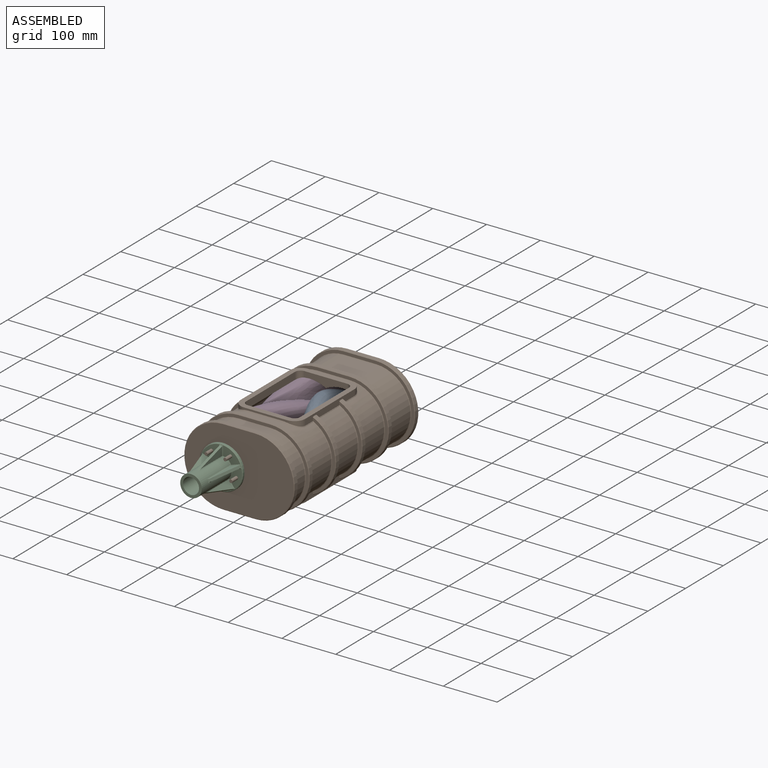
[diagram: assembled view]
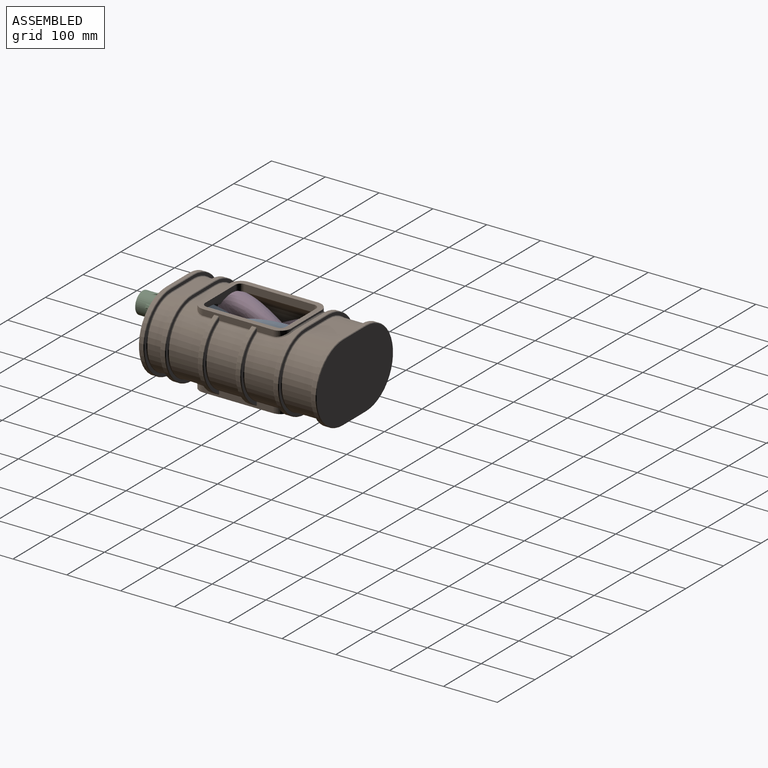
[diagram: assembled view, second angle]
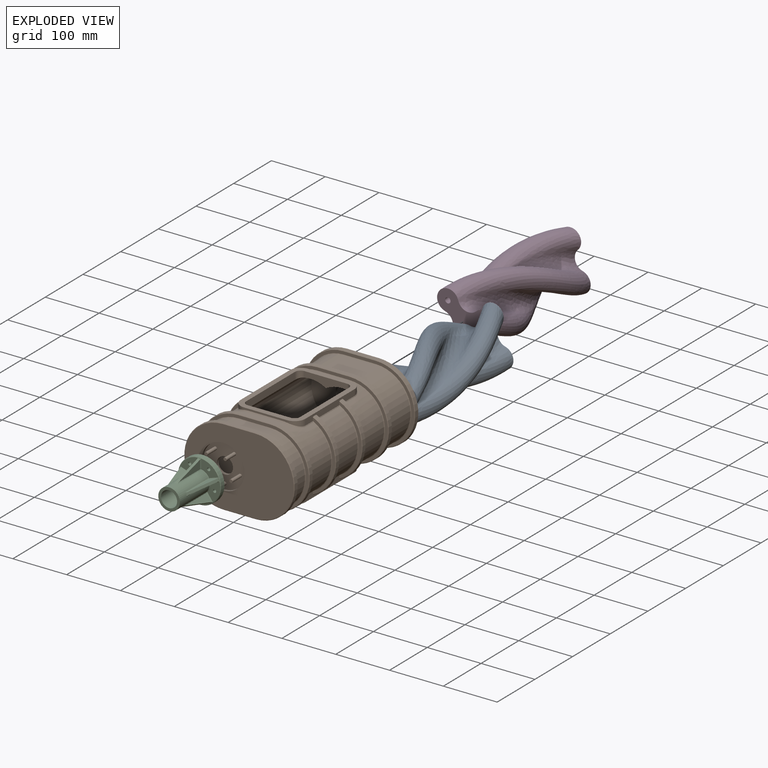
[diagram: exploded view]
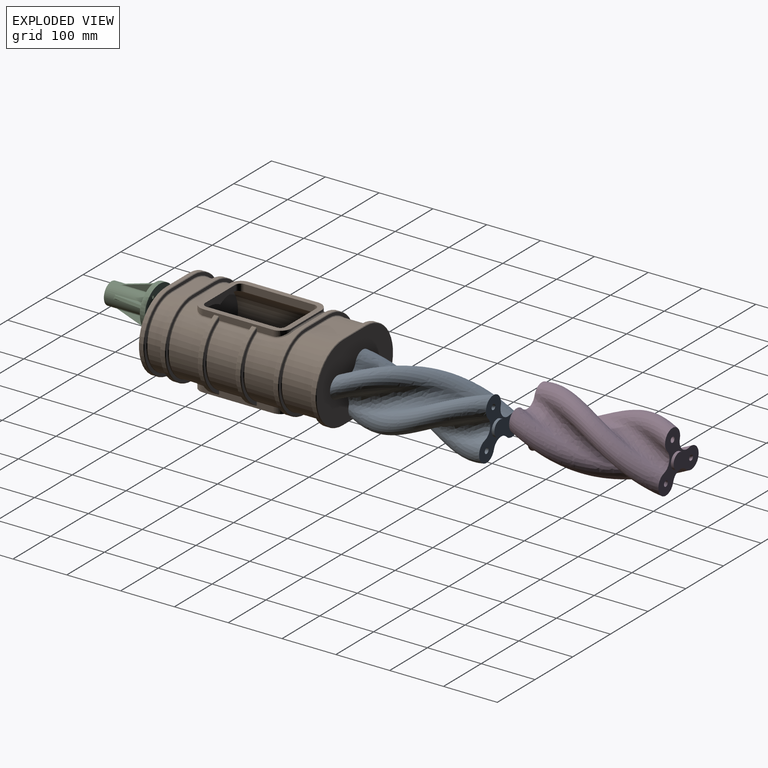
[diagram: exploded view, second angle]
ASSEMBLY  parts=4 mates=3
PART A: 13 faces, bbox 125.6x275x125.7 mm
  f0: cylinder r=15mm len=30mm, axis (0,1,0), area 471.2mm2, adj f1,f5
  f1: plane 30x30mm, normal (0,1,0), area 706.9mm2, adj f0
  f2: bspline ~270x90.34mm, area 8922mm2, adj f5,f6
  f3: bspline ~270x102.4mm, area 8921.8mm2, adj f5,f6
  f4: bspline ~270x95.44mm, area 8921.8mm2, adj f5,f6
  f5: plane 109.28x100mm, normal (0,1,0), area 4471.1mm2, adj f0,f2,f3,f4,f7,f8,f9,f10
  f6: plane 109.28x100mm, normal (0,-1,0), area 5177.9mm2, adj f2,f3,f4,f7,f8,f9,f10,f11
  f7: bspline ~270x69.48mm, area 11659.8mm2, adj f5,f6,f8,f12
  f8: bspline ~270x123.46mm, area 24033.5mm2, adj f5,f6,f7,f9
  f9: bspline ~270x69.67mm, area 11659.8mm2, adj f5,f6,f8,f10
  f10: bspline ~270x123.46mm, area 24033.5mm2, adj f5,f6,f9,f11
  f11: bspline ~270x69.48mm, area 11659.8mm2, adj f5,f6,f10,f12
  f12: bspline ~270x125.5mm, area 24033.5mm2, adj f5,f6,f7,f11
PART B: 223 faces, bbox 205x350x145 mm
  f0: plane 130x13.43mm, normal (-1,0,0), area 1746.1mm2, adj f16,f161,f180,f181
  f1: plane 130x13.43mm, normal (1,0,0), area 1746.1mm2, adj f15,f161,f179,f182
  f2: plane 80x18.04mm, normal (0,-1,0), area 961.8mm2, adj f15,f16,f166,f175,f176
  f3: plane 80x18.04mm, normal (0,1,0), area 961.8mm2, adj f15,f16,f166,f177,f178
  f4: cylinder r=65mm len=130mm, axis (0,-1,0), area 9444.1mm2, adj f17,f34,f36,f119,f198,f199,f200,f212
  f5: plane 60x7.35mm, normal (0,0,-1), area 441.1mm2, adj f6,f25,f106,f194
  f6: cylinder r=65mm len=130mm, axis (0,-1,0), area 8800.9mm2, adj f5,f7,f19,f104,f191,f192,f193,f205
  f7: plane 60x7.35mm, normal (0,0,1), area 441.1mm2, adj f6,f25,f103,f208
  f8: cylinder r=72.5mm len=132mm, axis (0,1,0), area 1327.2mm2, adj f23,f24,f165,f170
  f9: plane 129.8x41.5mm, normal (0,1,0), area 846.4mm2, adj f20,f23,f165,f170
  f10: plane 129.8x41.5mm, normal (0,-1,0), area 846.4mm2, adj f17,f24,f165,f170
  f11: cylinder r=65mm len=114.41mm, axis (0,-1,0), area 8113.1mm2, adj f18,f20,f221,f222
  f12: cylinder r=72.5mm len=132mm, axis (0,1,0), area 1327.2mm2, adj f21,f22,f165,f170
  f13: plane 129.8x41.5mm, normal (0,-1,0), area 846.4mm2, adj f18,f22,f165,f170
  f14: plane 129.8x41.5mm, normal (0,1,0), area 846.4mm2, adj f19,f21,f165,f170
  f15: cylinder r=60mm len=270mm, axis (0,-1,0), area 52523.4mm2, adj f1,f2,f3,f16,f82,f83,f172,f173
  f16: cylinder r=60mm len=270mm, axis (0,-1,0), area 52523.4mm2, adj f0,f2,f3,f15,f82,f83,f171,f173
  f17: cone r=65mm half-angle=45deg, axis (0,1,0), area 201.6mm2, adj f4,f10,f165,f170,f198,f212
  f18: cone r=65mm half-angle=45deg, axis (0,1,0), area 201.6mm2, adj f11,f13,f165,f170,f221,f222
  f19: cone r=66mm half-angle=45deg, axis (0,-1,0), area 201.6mm2, adj f6,f14,f165,f170,f191,f205
  f20: cone r=66mm half-angle=45deg, axis (0,-1,0), area 201.6mm2, adj f9,f11,f165,f170,f221,f222
  f21: cone r=72.5mm half-angle=45deg, axis (0,-1,0), area 232.4mm2, adj f12,f14,f165,f170
  f22: cone r=71.5mm half-angle=45deg, axis (0,1,0), area 232.4mm2, adj f12,f13,f165,f170
  f23: cone r=72.5mm half-angle=45deg, axis (0,-1,0), area 232.4mm2, adj f8,f9,f165,f170
  f24: cone r=71.5mm half-angle=45deg, axis (0,1,0), area 232.4mm2, adj f8,f10,f165,f170
  f25: cylinder r=65mm len=130mm, axis (0,-1,0), area 8800.9mm2, adj f5,f7,f105,f115,f195,f196,f197,f209
  f26: cylinder r=3mm len=25mm, axis (0,1,0), area 471.2mm2, adj f27,f77
  f27: plane 6x6mm, normal (0,-1,0), area 28.3mm2, adj f26
  f28: cylinder r=3mm len=25mm, axis (0,1,0), area 471.2mm2, adj f29,f77
  f29: plane 6x6mm, normal (0,-1,0), area 28.3mm2, adj f28
  f30: cylinder r=3mm len=25mm, axis (0,1,0), area 471.2mm2, adj f31,f77
  f31: plane 6x6mm, normal (0,-1,0), area 28.3mm2, adj f30
  f32: cylinder r=3mm len=25mm, axis (0,1,0), area 471.2mm2, adj f33,f77
  f33: plane 6x6mm, normal (0,-1,0), area 28.3mm2, adj f32
  f34: plane 60x17.35mm, normal (0,0,-1), area 1041.1mm2, adj f4,f35,f120,f201
  f35: cylinder r=65mm len=130mm, axis (0,-1,0), area 9444.1mm2, adj f34,f36,f101,f118,f202,f203,f204,f216
  f36: plane 60x17.35mm, normal (0,0,1), area 1041.1mm2, adj f4,f35,f117,f215
  f37: plane 60x8mm, normal (0,0,1), area 480mm2, adj f38,f40,f133,f137
  f38: cylinder r=72.5mm len=145mm, axis (0,1,0), area 1822.1mm2, adj f37,f39,f134,f138
  f39: plane 60x8mm, normal (0,0,-1), area 480mm2, adj f38,f40,f136,f140
  f40: cylinder r=72.5mm len=145mm, axis (0,1,0), area 1822.1mm2, adj f37,f39,f135,f139
  f41: plane 203x143mm, normal (0,1,0), area 3035.8mm2, adj f111,f112,f113,f114,f133,f134,f135,f136
  f42: plane 203x143mm, normal (0,-1,0), area 3035.8mm2, adj f103,f104,f105,f106,f137,f138,f139,f140
  f43: cylinder r=72.5mm len=132mm, axis (0,1,0), area 1327.2mm2, adj f143,f144,f162,f167
  f44: plane 129.8x41.5mm, normal (0,1,0), area 846.4mm2, adj f116,f143,f162,f167
  f45: plane 129.8x41.5mm, normal (0,-1,0), area 846.4mm2, adj f101,f144,f162,f167
  f46: plane 60x58mm, normal (0,0,-1), area 3480mm2, adj f47,f49,f110,f114
  f47: cylinder r=65mm len=130mm, axis (0,-1,0), area 11843.8mm2, adj f46,f48,f108,f112
  f48: plane 60x58mm, normal (0,0,1), area 3480mm2, adj f47,f49,f107,f111
  f49: cylinder r=65mm len=130mm, axis (0,-1,0), area 11843.8mm2, adj f46,f48,f109,f113
  f50: cylinder r=65mm len=114.41mm, axis (0,-1,0), area 8113.1mm2, adj f102,f116,f219,f220
  f51: cylinder r=72.5mm len=132mm, axis (0,1,0), area 1327.2mm2, adj f141,f142,f162,f167
  f52: plane 129.8x41.5mm, normal (0,-1,0), area 846.4mm2, adj f102,f142,f162,f167
  f53: plane 129.8x41.5mm, normal (0,1,0), area 846.4mm2, adj f115,f141,f162,f167
  f54: plane 60x8mm, normal (0,0,1), area 480mm2, adj f55,f57,f145,f149
  f55: cylinder r=72.5mm len=145mm, axis (0,1,0), area 1822.1mm2, adj f54,f56,f146,f150
  f56: plane 60x8mm, normal (0,0,-1), area 480mm2, adj f55,f57,f148,f152
  f57: cylinder r=72.5mm len=145mm, axis (0,1,0), area 1822.1mm2, adj f54,f56,f147,f151
  f58: plane 203x143mm, normal (0,-1,0), area 3035.8mm2, adj f97,f98,f99,f100,f149,f150,f151,f152
  f59: plane 203x143mm, normal (0,1,0), area 3035.8mm2, adj f117,f118,f119,f120,f145,f146,f147,f148
  f60: plane 60x28mm, normal (0,0,1), area 1680mm2, adj f61,f62,f97,f121
  f61: cylinder r=65mm len=130mm, axis (0,-1,0), area 5717.7mm2, adj f60,f63,f99,f122
  f62: cylinder r=65mm len=130mm, axis (0,-1,0), area 5717.7mm2, adj f60,f63,f98,f123
  f63: plane 60x28mm, normal (0,0,-1), area 1680mm2, adj f61,f62,f100,f124
  f64: plane 203x143mm, normal (0,-1,0), area 19614.1mm2, adj f76,f153,f154,f155,f156
  f65: cylinder r=72.5mm len=145mm, axis (0,1,0), area 1822.1mm2, adj f66,f68,f155,f159
  f66: plane 60x8mm, normal (0,0,-1), area 480mm2, adj f65,f67,f156,f160
  f67: cylinder r=72.5mm len=145mm, axis (0,1,0), area 1822.1mm2, adj f66,f68,f154,f158
  f68: plane 60x8mm, normal (0,0,1), area 480mm2, adj f65,f67,f153,f157
  f69: plane 203x143mm, normal (0,1,0), area 3035.8mm2, adj f121,f122,f123,f124,f157,f158,f159,f160
  f70: plane 203x143mm, normal (0,-1,0), area 3035.8mm2, adj f107,f108,f109,f110,f129,f130,f131,f132
  f71: plane 203x143mm, normal (0,1,0), area 24640.6mm2, adj f125,f126,f127,f128
  f72: plane 60x8mm, normal (0,0,-1), area 480mm2, adj f73,f75,f128,f132
  f73: cylinder r=72.5mm len=145mm, axis (0,-1,0), area 1822.1mm2, adj f72,f74,f127,f131
  f74: plane 60x8mm, normal (0,0,1), area 480mm2, adj f73,f75,f125,f129
  f75: cylinder r=72.5mm len=145mm, axis (0,-1,0), area 1822.1mm2, adj f72,f74,f126,f130
  f76: cylinder r=40mm len=80mm, axis (0,-1,0), area 1256.6mm2, adj f64,f77
  f77: plane 80x80mm, normal (0,-1,0), area 4178.3mm2, adj f26,f28,f30,f32,f76,f94,f95
  f78: plane 30x30mm, normal (0,-1,0), area 706.9mm2, adj f80
  f79: plane 30x30mm, normal (0,-1,0), area 706.9mm2, adj f81
  f80: cylinder r=15mm len=30mm, axis (0,1,0), area 471.2mm2, adj f78,f82
  f81: cylinder r=15mm len=30mm, axis (0,1,0), area 471.2mm2, adj f79,f82
  f82: plane 180x120mm, normal (0,-1,0), area 16783.6mm2, adj f15,f16,f80,f81
  f83: plane 180x120mm, normal (0,1,0), area 16783.6mm2, adj f15,f16,f84,f85
  f84: cylinder r=15mm len=30mm, axis (0,1,0), area 471.2mm2, adj f83,f86
  f85: cylinder r=15mm len=30mm, axis (0,1,0), area 471.2mm2, adj f83,f86
  f86: plane 180x120mm, normal (0,-1,0), area 17096mm2, adj f84,f85,f88,f89,f90,f91
  f87: plane 30x30mm, normal (0,1,0), area 706.9mm2, adj f92
  f88: cylinder r=60mm len=120mm, axis (0,-1,0), area 6597.3mm2, adj f86,f89,f91,f93
  f89: plane 60x35mm, normal (0,0,-1), area 2100mm2, adj f86,f88,f90,f93
  f90: cylinder r=60mm len=120mm, axis (0,-1,0), area 6597.3mm2, adj f86,f89,f91,f93
  f91: plane 60x35mm, normal (0,0,1), area 2100mm2, adj f86,f88,f90,f93
  f92: cylinder r=15mm len=30mm, axis (0,1,0), area 471.2mm2, adj f87,f93
  f93: plane 180x120mm, normal (0,1,0), area 17096mm2, adj f88,f89,f90,f91,f92,f94
  f94: cylinder r=15mm len=30mm, axis (0,1,0), area 471.2mm2, adj f77,f93
  f95: cylinder r=3mm len=25mm, axis (0,1,0), area 471.2mm2, adj f77,f96
  f96: plane 6x6mm, normal (0,-1,0), area 28.3mm2, adj f95
  f97: plane 60x1mm, normal (0,-0.71,0.71), area 84.9mm2, adj f58,f60,f98,f99
  f98: cone r=66mm half-angle=45deg, axis (0,1,0), area 291mm2, adj f58,f62,f97,f100
  f99: cone r=66mm half-angle=45deg, axis (0,1,0), area 291mm2, adj f58,f61,f97,f100
  f100: plane 60x1mm, normal (0,-0.71,-0.71), area 84.9mm2, adj f58,f63,f98,f99
  f101: cone r=65mm half-angle=45deg, axis (0,1,0), area 201.6mm2, adj f35,f45,f162,f167,f204,f218
  f102: cone r=65mm half-angle=45deg, axis (0,1,0), area 201.6mm2, adj f50,f52,f162,f167,f219,f220
  f103: plane 60x1mm, normal (0,-0.71,0.71), area 84.9mm2, adj f7,f42,f104,f105
  f104: cone r=65mm half-angle=45deg, axis (0,1,0), area 291mm2, adj f6,f42,f103,f106
  f105: cone r=65mm half-angle=45deg, axis (0,1,0), area 291mm2, adj f25,f42,f103,f106
  f106: plane 60x1mm, normal (0,-0.71,-0.71), area 84.9mm2, adj f5,f42,f104,f105
  f107: plane 60x1mm, normal (0,-0.71,0.71), area 84.9mm2, adj f48,f70,f108,f109
  f108: cone r=65mm half-angle=45deg, axis (0,1,0), area 291mm2, adj f47,f70,f107,f110
  f109: cone r=65mm half-angle=45deg, axis (0,1,0), area 291mm2, adj f49,f70,f107,f110
  f110: plane 60x1mm, normal (0,-0.71,-0.71), area 84.9mm2, adj f46,f70,f108,f109
  f111: plane 60x1mm, normal (0,0.71,0.71), area 84.9mm2, adj f41,f48,f112,f113
  f112: cone r=66mm half-angle=45deg, axis (0,-1,0), area 291mm2, adj f41,f47,f111,f114
  f113: cone r=66mm half-angle=45deg, axis (0,-1,0), area 291mm2, adj f41,f49,f111,f114
  f114: plane 60x1mm, normal (0,0.71,-0.71), area 84.9mm2, adj f41,f46,f112,f113
  f115: cone r=66mm half-angle=45deg, axis (0,-1,0), area 201.6mm2, adj f25,f53,f162,f167,f197,f211
  f116: cone r=66mm half-angle=45deg, axis (0,-1,0), area 201.6mm2, adj f44,f50,f162,f167,f219,f220
  f117: plane 60x1mm, normal (0,0.71,0.71), area 84.9mm2, adj f36,f59,f118,f119
  f118: cone r=65mm half-angle=45deg, axis (0,-1,0), area 291mm2, adj f35,f59,f117,f120
  f119: cone r=65mm half-angle=45deg, axis (0,-1,0), area 291mm2, adj f4,f59,f117,f120
  f120: plane 60x1mm, normal (0,0.71,-0.71), area 84.9mm2, adj f34,f59,f118,f119
  f121: plane 60x1mm, normal (0,0.71,0.71), area 84.9mm2, adj f60,f69,f122,f123
  f122: cone r=66mm half-angle=45deg, axis (0,-1,0), area 291mm2, adj f61,f69,f121,f124
  f123: cone r=66mm half-angle=45deg, axis (0,-1,0), area 291mm2, adj f62,f69,f121,f124
  f124: plane 60x1mm, normal (0,0.71,-0.71), area 84.9mm2, adj f63,f69,f122,f123
  f125: plane 60x1mm, normal (0,0.71,0.71), area 84.9mm2, adj f71,f74,f126,f127
  f126: cone r=71.5mm half-angle=45deg, axis (0,-1,0), area 319.9mm2, adj f71,f75,f125,f128
  f127: cone r=71.5mm half-angle=45deg, axis (0,-1,0), area 319.9mm2, adj f71,f73,f125,f128
  f128: plane 60x1mm, normal (0,0.71,-0.71), area 84.9mm2, adj f71,f72,f126,f127
  f129: plane 60x1mm, normal (0,-0.71,0.71), area 84.9mm2, adj f70,f74,f130,f131
  f130: cone r=72.5mm half-angle=45deg, axis (0,1,0), area 319.9mm2, adj f70,f75,f129,f132
  f131: cone r=72.5mm half-angle=45deg, axis (0,1,0), area 319.9mm2, adj f70,f73,f129,f132
  f132: plane 60x1mm, normal (0,-0.71,-0.71), area 84.9mm2, adj f70,f72,f130,f131
  f133: plane 60x1mm, normal (0,0.71,0.71), area 84.9mm2, adj f37,f41,f134,f135
  f134: cone r=72.5mm half-angle=45deg, axis (0,-1,0), area 319.9mm2, adj f38,f41,f133,f136
  f135: cone r=72.5mm half-angle=45deg, axis (0,-1,0), area 319.9mm2, adj f40,f41,f133,f136
  f136: plane 60x1mm, normal (0,0.71,-0.71), area 84.9mm2, adj f39,f41,f134,f135
  f137: plane 60x1mm, normal (0,-0.71,0.71), area 84.9mm2, adj f37,f42,f138,f139
  f138: cone r=71.5mm half-angle=45deg, axis (0,1,0), area 319.9mm2, adj f38,f42,f137,f140
  f139: cone r=71.5mm half-angle=45deg, axis (0,1,0), area 319.9mm2, adj f40,f42,f137,f140
  f140: plane 60x1mm, normal (0,-0.71,-0.71), area 84.9mm2, adj f39,f42,f138,f139
  f141: cone r=72.5mm half-angle=45deg, axis (0,-1,0), area 232.4mm2, adj f51,f53,f162,f167
  f142: cone r=71.5mm half-angle=45deg, axis (0,1,0), area 232.4mm2, adj f51,f52,f162,f167
  f143: cone r=72.5mm half-angle=45deg, axis (0,-1,0), area 232.4mm2, adj f43,f44,f162,f167
  f144: cone r=71.5mm half-angle=45deg, axis (0,1,0), area 232.4mm2, adj f43,f45,f162,f167
  f145: plane 60x1mm, normal (0,0.71,0.71), area 84.9mm2, adj f54,f59,f146,f147
  f146: cone r=72.5mm half-angle=45deg, axis (0,-1,0), area 319.9mm2, adj f55,f59,f145,f148
  f147: cone r=72.5mm half-angle=45deg, axis (0,-1,0), area 319.9mm2, adj f57,f59,f145,f148
  f148: plane 60x1mm, normal (0,0.71,-0.71), area 84.9mm2, adj f56,f59,f146,f147
  f149: plane 60x1mm, normal (0,-0.71,0.71), area 84.9mm2, adj f54,f58,f150,f151
  f150: cone r=71.5mm half-angle=45deg, axis (0,1,0), area 319.9mm2, adj f55,f58,f149,f152
  f151: cone r=71.5mm half-angle=45deg, axis (0,1,0), area 319.9mm2, adj f57,f58,f149,f152
  f152: plane 60x1mm, normal (0,-0.71,-0.71), area 84.9mm2, adj f56,f58,f150,f151
  f153: plane 60x1mm, normal (0,-0.71,0.71), area 84.9mm2, adj f64,f68,f154,f155
  f154: cone r=71.5mm half-angle=45deg, axis (0,1,0), area 319.9mm2, adj f64,f67,f153,f156
  f155: cone r=71.5mm half-angle=45deg, axis (0,1,0), area 319.9mm2, adj f64,f65,f153,f156
  f156: plane 60x1mm, normal (0,-0.71,-0.71), area 84.9mm2, adj f64,f66,f154,f155
  f157: plane 60x1mm, normal (0,0.71,0.71), area 84.9mm2, adj f68,f69,f158,f159
  f158: cone r=72.5mm half-angle=45deg, axis (0,-1,0), area 319.9mm2, adj f67,f69,f157,f160
  f159: cone r=72.5mm half-angle=45deg, axis (0,-1,0), area 319.9mm2, adj f65,f69,f157,f160
  f160: plane 60x1mm, normal (0,0.71,-0.71), area 84.9mm2, adj f66,f69,f158,f159
  f161: plane 170x120mm, normal (0,0,1), area 5142.5mm2, adj f0,f1,f162,f163,f164,f165,f173,f174
  f162: plane 130x11.35mm, normal (1,0,0), area 1330.2mm2, adj f43,f44,f45,f51,f52,f53,f101,f102
  f163: plane 80x4.11mm, normal (0,1,0), area 273.2mm2, adj f161,f187,f190,f207,f208,f209
  f164: plane 80x4.11mm, normal (0,-1,0), area 273.2mm2, adj f161,f188,f189,f214,f215,f216
  f165: plane 130x11.35mm, normal (-1,0,0), area 1330.2mm2, adj f8,f9,f10,f12,f13,f14,f17,f18
  f166: plane 170x120mm, normal (0,0,-1), area 5142.5mm2, adj f2,f3,f167,f168,f169,f170,f171,f172
  f167: plane 130x11.35mm, normal (1,0,0), area 1330.2mm2, adj f43,f44,f45,f51,f52,f53,f101,f102
  f168: plane 80x4.11mm, normal (0,1,0), area 273.2mm2, adj f166,f184,f186,f193,f194,f195
  f169: plane 80x4.11mm, normal (0,-1,0), area 273.2mm2, adj f166,f183,f185,f200,f201,f202
  f170: plane 130x11.35mm, normal (-1,0,0), area 1330.2mm2, adj f8,f9,f10,f12,f13,f14,f17,f18
  f171: plane 130x13.43mm, normal (-1,0,0), area 1746.1mm2, adj f16,f166,f175,f177
  f172: plane 130x13.43mm, normal (1,0,0), area 1746.1mm2, adj f15,f166,f176,f178
  f173: plane 80x18.04mm, normal (0,-1,0), area 961.8mm2, adj f15,f16,f161,f179,f181
  f174: plane 80x18.04mm, normal (0,1,0), area 961.8mm2, adj f15,f16,f161,f180,f182
  f175: cylinder r=10mm len=13.43mm, axis (0,0,-1), area 190.6mm2, adj f2,f16,f166,f171
  f176: cylinder r=10mm len=13.43mm, axis (0,0,1), area 190.6mm2, adj f2,f15,f166,f172
  f177: cylinder r=10mm len=13.43mm, axis (0,0,1), area 190.6mm2, adj f3,f16,f166,f171
  f178: cylinder r=10mm len=13.43mm, axis (0,0,-1), area 190.6mm2, adj f3,f15,f166,f172
  f179: cylinder r=10mm len=13.43mm, axis (0,0,1), area 190.6mm2, adj f1,f15,f161,f173
  f180: cylinder r=10mm len=13.43mm, axis (0,0,1), area 190.6mm2, adj f0,f16,f161,f174
  f181: cylinder r=10mm len=13.43mm, axis (0,0,-1), area 190.6mm2, adj f0,f16,f161,f173
  f182: cylinder r=10mm len=13.43mm, axis (0,0,-1), area 190.6mm2, adj f1,f15,f161,f174
  f183: cylinder r=20mm len=20mm, axis (0,0,1), area 242.7mm2, adj f166,f169,f170,f199
  f184: cylinder r=20mm len=20mm, axis (0,0,-1), area 242.7mm2, adj f166,f168,f170,f192
  f185: cylinder r=20mm len=20mm, axis (0,0,-1), area 242.7mm2, adj f166,f167,f169,f203
  f186: cylinder r=20mm len=20mm, axis (0,0,1), area 242.7mm2, adj f166,f167,f168,f196
  f187: cylinder r=20mm len=20mm, axis (0,0,-1), area 242.7mm2, adj f161,f163,f165,f206
  f188: cylinder r=20mm len=20mm, axis (0,0,1), area 242.7mm2, adj f161,f164,f165,f213
  f189: cylinder r=20mm len=20mm, axis (0,0,-1), area 242.7mm2, adj f161,f162,f164,f217
  f190: cylinder r=20mm len=20mm, axis (0,0,1), area 242.7mm2, adj f161,f162,f163,f210
  f191: plane 29.9x1.47mm, normal (-0.86,0,-0.51), area 49.7mm2, adj f6,f19,f170,f192
  f192: bspline ~21.65x21.11mm, area 66.6mm2, adj f6,f184,f191,f193
  f193: cone r=65mm half-angle=45deg, axis (0,-1,0), area 23.1mm2, adj f6,f168,f192,f194
  f194: plane 60x1.65mm, normal (0,0.71,-0.71), area 139.8mm2, adj f5,f168,f193,f195
  f195: cone r=65mm half-angle=45deg, axis (0,-1,0), area 23.1mm2, adj f25,f168,f194,f196
  f196: bspline ~21.65x21.11mm, area 66.6mm2, adj f25,f186,f195,f197
  f197: plane 29.9x1.47mm, normal (0.86,0,-0.51), area 49.7mm2, adj f25,f115,f167,f196
  f198: plane 19.9x1.47mm, normal (-0.86,0,-0.51), area 32.8mm2, adj f4,f17,f170,f199
  f199: bspline ~21.65x21.11mm, area 66.6mm2, adj f4,f183,f198,f200
  f200: cone r=66.65mm half-angle=45deg, axis (0,1,0), area 23.1mm2, adj f4,f169,f199,f201
  f201: plane 60x1.65mm, normal (0,-0.71,-0.71), area 139.8mm2, adj f34,f169,f200,f202
  f202: cone r=66.65mm half-angle=45deg, axis (0,1,0), area 23.1mm2, adj f35,f169,f201,f203
  f203: bspline ~21.65x21.11mm, area 66.6mm2, adj f35,f185,f202,f204
  f204: plane 19.9x1.47mm, normal (0.86,0,-0.51), area 32.8mm2, adj f35,f101,f167,f203
  f205: plane 29.9x1.47mm, normal (-0.86,0,0.51), area 49.7mm2, adj f6,f19,f165,f206
  f206: bspline ~21.65x21.11mm, area 66.6mm2, adj f6,f187,f205,f207
  f207: cone r=65mm half-angle=45deg, axis (0,-1,0), area 23.1mm2, adj f6,f163,f206,f208
  f208: plane 60x1.65mm, normal (0,0.71,0.71), area 139.8mm2, adj f7,f163,f207,f209
  f209: cone r=65mm half-angle=45deg, axis (0,-1,0), area 23.1mm2, adj f25,f163,f208,f210
  f210: bspline ~21.65x21.11mm, area 66.6mm2, adj f25,f190,f209,f211
  f211: plane 29.9x1.47mm, normal (0.86,0,0.51), area 49.7mm2, adj f25,f115,f162,f210
  f212: plane 19.9x1.47mm, normal (-0.86,0,0.51), area 32.8mm2, adj f4,f17,f165,f213
  f213: bspline ~21.65x21.11mm, area 66.6mm2, adj f4,f188,f212,f214
  f214: cone r=66.65mm half-angle=45deg, axis (0,1,0), area 23.1mm2, adj f4,f164,f213,f215
  f215: plane 60x1.65mm, normal (0,-0.71,0.71), area 139.8mm2, adj f36,f164,f214,f216
  f216: cone r=66.65mm half-angle=45deg, axis (0,1,0), area 23.1mm2, adj f35,f164,f215,f217
  f217: bspline ~21.65x21.11mm, area 66.6mm2, adj f35,f189,f216,f218
  f218: plane 19.9x1.47mm, normal (0.86,0,0.51), area 32.8mm2, adj f35,f101,f162,f217
  f219: plane 59.78x1.47mm, normal (0.86,0,-0.51), area 99.4mm2, adj f50,f102,f116,f167
  f220: plane 59.78x1.47mm, normal (0.86,0,0.51), area 99.4mm2, adj f50,f102,f116,f162
  f221: plane 59.78x1.47mm, normal (-0.86,0,-0.51), area 99.4mm2, adj f11,f18,f20,f170
  f222: plane 59.78x1.47mm, normal (-0.86,0,0.51), area 99.4mm2, adj f11,f18,f20,f165
PART C: 64 faces, bbox 80x90x80 mm
  f0: plane 77.73x77.73mm, normal (0,-1,0), area 2571.5mm2, adj f1,f2,f3,f4,f6,f7,f8,f9
  f1: cone r=20mm half-angle=45deg, axis (0,1,0), area 30.9mm2, adj f0,f13,f51,f53,f59,f61
  f2: cone r=20mm half-angle=45deg, axis (0,1,0), area 30.9mm2, adj f0,f13,f42,f44,f50,f52
  f3: cone r=20mm half-angle=45deg, axis (0,1,0), area 30.9mm2, adj f0,f13,f33,f35,f41,f43
  f4: cone r=20mm half-angle=45deg, axis (0,1,0), area 30.5mm2, adj f0,f13,f26,f32,f34
  f5: cylinder r=15mm len=90mm, axis (0,1,0), area 8482.3mm2, adj f12,f14
  f6: cylinder r=3mm len=10mm, axis (0,1,0), area 188.5mm2, adj f0,f12
  f7: cylinder r=3mm len=10mm, axis (0,1,0), area 188.5mm2, adj f0,f12
  f8: cylinder r=3mm len=10mm, axis (0,1,0), area 188.5mm2, adj f0,f12
  f9: cylinder r=3mm len=10mm, axis (0,1,0), area 188.5mm2, adj f0,f12
  f10: cylinder r=3mm len=10mm, axis (0,1,0), area 188.5mm2, adj f0,f12
  f11: cylinder r=40mm len=80mm, axis (0,1,0), area 2228.3mm2, adj f12,f18
  f12: plane 80x80mm, normal (0,1,0), area 4178.3mm2, adj f5,f6,f7,f8,f9,f10,f11
  f13: cylinder r=20mm len=78.87mm, axis (0,1,0), area 7789.4mm2, adj f1,f2,f3,f4,f14,f19,f22,f23
  f14: plane 40x40mm, normal (0,-1,0), area 549.8mm2, adj f5,f13
  f15: plane 57.25x16.36mm, normal (1,0,0), area 468.2mm2, adj f17,f23,f24
  f16: plane 57.25x16.36mm, normal (-1,0,0), area 468.2mm2, adj f17,f21,f22
  f17: plane 61.23x17.5mm, normal (0,-0.27,0.96), area 317.4mm2, adj f15,f16,f19,f20,f21,f22,f23,f24
  f18: cone r=38.87mm half-angle=45deg, axis (0,1,0), area 397.3mm2, adj f0,f11
  f19: bspline ~7.27x1.39mm, area 2.4mm2, adj f13,f17,f22,f23
  f20: plane 7.27x1.09mm, normal (0,-0.8,0.6), area 8.8mm2, adj f0,f17,f21,f24
  f21: plane 17.54x1.13mm, normal (-0.71,-0.71,0), area 27mm2, adj f0,f16,f17,f20,f25
  f22: plane 61.38x1.12mm, normal (-0.77,0,0.64), area 86.4mm2, adj f13,f16,f17,f19,f25
  f23: plane 61.38x1.12mm, normal (0.77,0,0.64), area 86.4mm2, adj f13,f15,f17,f19,f26
  f24: plane 17.54x1.13mm, normal (0.71,-0.71,0), area 27mm2, adj f0,f15,f17,f20,f26
  f25: plane 1.13x1.13mm, normal (-0.61,-0.61,0.51), area 1mm2, adj f21,f22,f27
  f26: plane 1.13x1.13mm, normal (0.61,-0.61,0.51), area 1mm2, adj f4,f23,f24
  f27: cone r=20mm half-angle=45deg, axis (0,1,0), area 30.5mm2, adj f0,f13,f25,f60,f62
  f28: plane 57.25x15.56mm, normal (0.31,0,-0.95), area 468.2mm2, adj f30,f33,f35
  f29: plane 57.25x15.56mm, normal (-0.31,0,0.95), area 468.2mm2, adj f30,f32,f34
  f30: plane 61.23x18.56mm, normal (0.91,-0.27,0.3), area 317.4mm2, adj f28,f29,f31,f32,f33,f34,f35,f36
  f31: plane 6.91x3.03mm, normal (0.57,-0.8,0.19), area 8.8mm2, adj f0,f30,f32,f33
  f32: plane 17.02x6.5mm, normal (-0.22,-0.71,0.67), area 27.4mm2, adj f0,f4,f29,f30,f31,f34
  f33: plane 17.43x6.14mm, normal (0.22,-0.71,-0.67), area 27.4mm2, adj f0,f3,f28,f30,f31,f35
  f34: plane 61.86x1.36mm, normal (0.38,0,0.93), area 86.7mm2, adj f4,f13,f29,f30,f32,f36
  f35: plane 61.86x1.25mm, normal (0.85,0,-0.53), area 86.7mm2, adj f3,f13,f28,f30,f33,f36
  f36: bspline ~6.91x2.25mm, area 2.4mm2, adj f13,f30,f34,f35
  f37: plane 57.25x13.23mm, normal (-0.81,0,-0.59), area 468.2mm2, adj f39,f42,f44
  f38: plane 57.25x13.23mm, normal (0.81,0,0.59), area 468.2mm2, adj f39,f41,f43
  f39: plane 61.23x17.8mm, normal (0.57,-0.27,-0.78), area 317.4mm2, adj f37,f38,f40,f41,f42,f43,f44,f45
  f40: plane 5.88x4.67mm, normal (0.35,-0.8,-0.49), area 8.8mm2, adj f0,f39,f41,f42
  f41: plane 14.26x11.23mm, normal (0.57,-0.71,0.42), area 27.4mm2, adj f0,f3,f38,f39,f40,f43
  f42: plane 15.04x10.54mm, normal (-0.57,-0.71,-0.42), area 27.4mm2, adj f0,f2,f37,f39,f40,f44
  f43: plane 61.86x1.46mm, normal (1,0,-0.07), area 86.7mm2, adj f3,f13,f38,f39,f41,f45
  f44: plane 61.86x1.42mm, normal (-0.24,0,-0.97), area 86.7mm2, adj f2,f13,f37,f39,f42,f45
  f45: bspline ~5.88x4.27mm, area 2.4mm2, adj f13,f39,f43,f44
  f46: plane 57.25x13.23mm, normal (-0.81,0,0.59), area 468.2mm2, adj f48,f51,f53
  f47: plane 57.25x13.23mm, normal (0.81,0,-0.59), area 468.2mm2, adj f48,f50,f52
  f48: plane 61.23x17.8mm, normal (-0.57,-0.27,-0.78), area 317.4mm2, adj f46,f47,f49,f50,f51,f52,f53,f54
  f49: plane 5.88x4.67mm, normal (-0.35,-0.8,-0.49), area 8.8mm2, adj f0,f48,f50,f51
  f50: plane 15.04x10.54mm, normal (0.57,-0.71,-0.42), area 27.4mm2, adj f0,f2,f47,f48,f49,f52
  f51: plane 14.26x11.23mm, normal (-0.57,-0.71,0.42), area 27.4mm2, adj f0,f1,f46,f48,f49,f53
  f52: plane 61.86x1.42mm, normal (0.24,0,-0.97), area 86.7mm2, adj f2,f13,f47,f48,f50,f54
  f53: plane 61.86x1.46mm, normal (-1,0,-0.07), area 86.7mm2, adj f1,f13,f46,f48,f51,f54
  f54: bspline ~5.88x4.27mm, area 2.4mm2, adj f13,f48,f52,f53
  f55: plane 57.25x15.56mm, normal (0.31,0,0.95), area 468.2mm2, adj f57,f60,f62
  f56: plane 57.25x15.56mm, normal (-0.31,0,-0.95), area 468.2mm2, adj f57,f59,f61
  f57: plane 61.23x18.56mm, normal (-0.91,-0.27,0.3), area 317.4mm2, adj f55,f56,f58,f59,f60,f61,f62,f63
  f58: plane 6.91x3.03mm, normal (-0.57,-0.8,0.19), area 8.8mm2, adj f0,f57,f59,f60
  f59: plane 17.43x6.14mm, normal (-0.22,-0.71,-0.67), area 27.4mm2, adj f0,f1,f56,f57,f58,f61
  f60: plane 17.02x6.5mm, normal (0.22,-0.71,0.67), area 27.4mm2, adj f0,f27,f55,f57,f58,f62
  f61: plane 61.86x1.25mm, normal (-0.85,0,-0.53), area 86.7mm2, adj f1,f13,f56,f57,f59,f63
  f62: plane 61.86x1.36mm, normal (-0.38,0,0.93), area 86.7mm2, adj f13,f27,f55,f57,f60,f63
  f63: bspline ~6.91x2.25mm, area 2.4mm2, adj f13,f57,f61,f62
PART D: 13 faces, bbox 125.6x275x125.7 mm
  f0: cylinder r=15mm len=30mm, axis (0,1,0), area 471.2mm2, adj f1,f5
  f1: plane 30x30mm, normal (0,1,0), area 706.9mm2, adj f0
  f2: bspline ~270x92.25mm, area 8922mm2, adj f5,f6
  f3: bspline ~270x96.06mm, area 8921.8mm2, adj f5,f6
  f4: bspline ~270x96.06mm, area 8921.8mm2, adj f5,f6
  f5: plane 109.28x100mm, normal (0,1,0), area 4471.1mm2, adj f0,f2,f3,f4,f7,f8,f9,f10
  f6: plane 109.28x100mm, normal (0,-1,0), area 5177.9mm2, adj f2,f3,f4,f7,f8,f9,f10,f11
  f7: bspline ~270x69.67mm, area 11659.8mm2, adj f5,f6,f8,f12
  f8: bspline ~270x123.46mm, area 24033.5mm2, adj f5,f6,f7,f9
  f9: bspline ~270x69.48mm, area 11659.8mm2, adj f5,f6,f8,f10
  f10: bspline ~270x125.5mm, area 24033.5mm2, adj f5,f6,f9,f11
  f11: bspline ~270x69.48mm, area 11659.8mm2, adj f5,f6,f10,f12
  f12: bspline ~270x123.46mm, area 24033.5mm2, adj f5,f6,f7,f11
PLACE A rot(axis=(0,1,0),74.8deg) t=(22.14,0,28.95)mm
PLACE B at identity fixed
PLACE C at identity
PLACE D rot(axis=(0,1,0),15.2deg) t=(-1.05,0,-7.86)mm
MATE revolute B.f81 <-> A.f0  axis (0,1,0) through (30,-135,0)mm
MATE fastened B.f80 <-> C.f11  axis (0,-1,0) through (-30,-180,0)mm
MATE revolute B.f80 <-> D.f0  axis (0,1,0) through (-30,-135,0)mm
